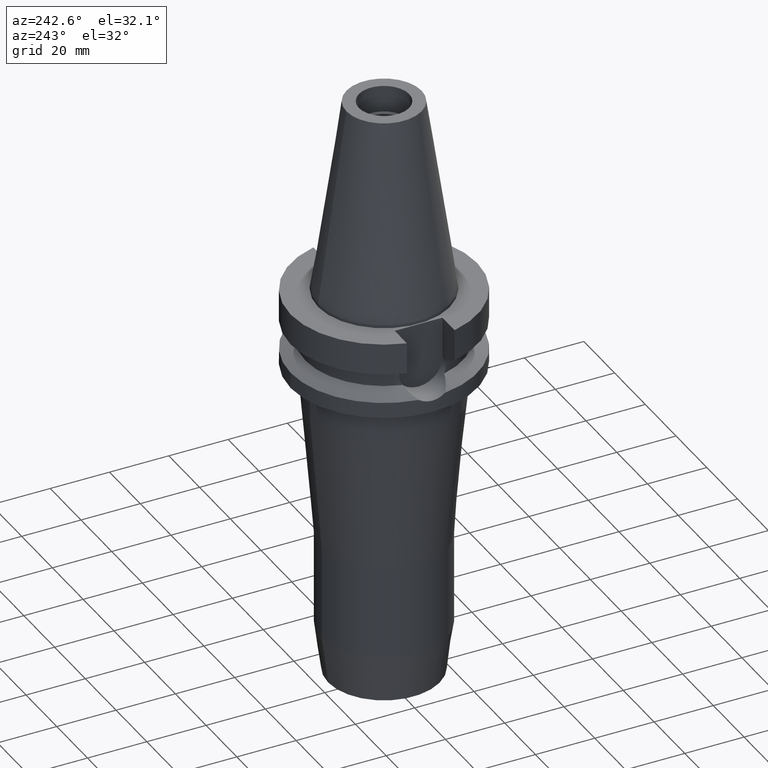
[diagram: clean part render]
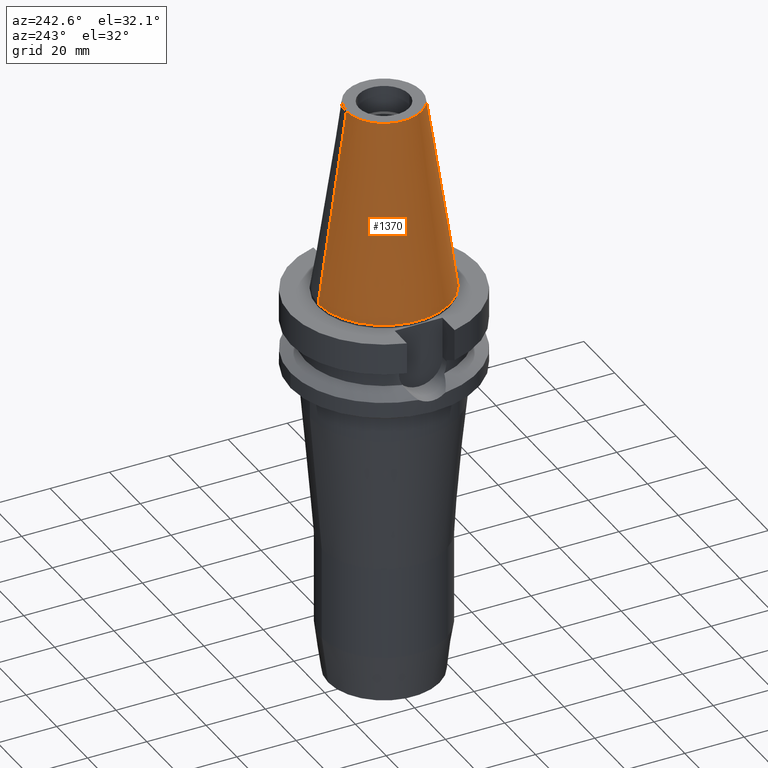
[diagram: same view with one face highlighted and labeled with its STEP entity id]
A machine part, auxiliary view. The second image highlights one B-rep face of the part: STEP entity #1370.
In plain terms, the highlighted conical surface has half-angle 8.297 deg.
Its self-contained STEP definition (entity closure, byte-faithful):
#17=DIRECTION('',(0.E0,1.443043893540E-1,-9.895333461856E-1));
#18=VECTOR('',#17,6.609175956738E1);
#19=CARTESIAN_POINT('',(0.E0,1.268766899430E1,6.54E1));
#20=LINE('',#19,#18);
#33=DIRECTION('',(0.E0,-1.443043893540E-1,-9.895333461856E-1));
#34=VECTOR('',#33,6.609175956738E1);
#35=CARTESIAN_POINT('',(0.E0,-1.268766899430E1,6.54E1));
#36=LINE('',#35,#34);
#40=CARTESIAN_POINT('',(0.E0,0.E0,1.136868377216E-13));
#41=DIRECTION('',(0.E0,0.E0,-1.E0));
#42=DIRECTION('',(0.E0,-1.E0,0.E0));
#43=AXIS2_PLACEMENT_3D('',#40,#41,#42);
#48=CARTESIAN_POINT('',(0.E0,0.E0,6.54E1));
#49=DIRECTION('',(0.E0,0.E0,-1.E0));
#50=DIRECTION('',(0.E0,-1.E0,0.E0));
#51=AXIS2_PLACEMENT_3D('',#48,#49,#50);
#1160=CARTESIAN_POINT('',(0.E0,1.268766899430E1,6.54E1));
#1161=CARTESIAN_POINT('',(0.E0,2.2225E1,1.563194018672E-13));
#1162=VERTEX_POINT('',#1160);
#1163=VERTEX_POINT('',#1161);
#1164=CARTESIAN_POINT('',(0.E0,-2.2225E1,1.136868377216E-13));
#1165=VERTEX_POINT('',#1164);
#1166=CARTESIAN_POINT('',(0.E0,-1.268766899430E1,6.54E1));
#1167=VERTEX_POINT('',#1166);
#1357=CARTESIAN_POINT('',(0.E0,0.E0,3.27E1));
#1358=DIRECTION('',(0.E0,0.E0,-1.E0));
#1359=DIRECTION('',(0.E0,-1.E0,0.E0));
#1360=AXIS2_PLACEMENT_3D('',#1357,#1358,#1359);
#1361=CONICAL_SURFACE('',#1360,1.745633449715E1,8.297E0);
#1362=ORIENTED_EDGE('',*,*,#1346,.F.);
#1364=ORIENTED_EDGE('',*,*,#1363,.F.);
#1365=ORIENTED_EDGE('',*,*,#1350,.T.);
#1367=ORIENTED_EDGE('',*,*,#1366,.T.);
#1368=EDGE_LOOP('',(#1362,#1364,#1365,#1367));
#1369=FACE_OUTER_BOUND('',#1368,.F.);
#44=CIRCLE('',#43,2.2225E1);
#52=CIRCLE('',#51,1.268766899430E1);
#1346=EDGE_CURVE('',#1162,#1163,#20,.T.);
#1350=EDGE_CURVE('',#1167,#1165,#36,.T.);
#1363=EDGE_CURVE('',#1167,#1162,#52,.T.);
#1366=EDGE_CURVE('',#1165,#1163,#44,.T.);
#1370=ADVANCED_FACE('',(#1369),#1361,.T.);